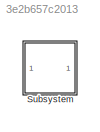
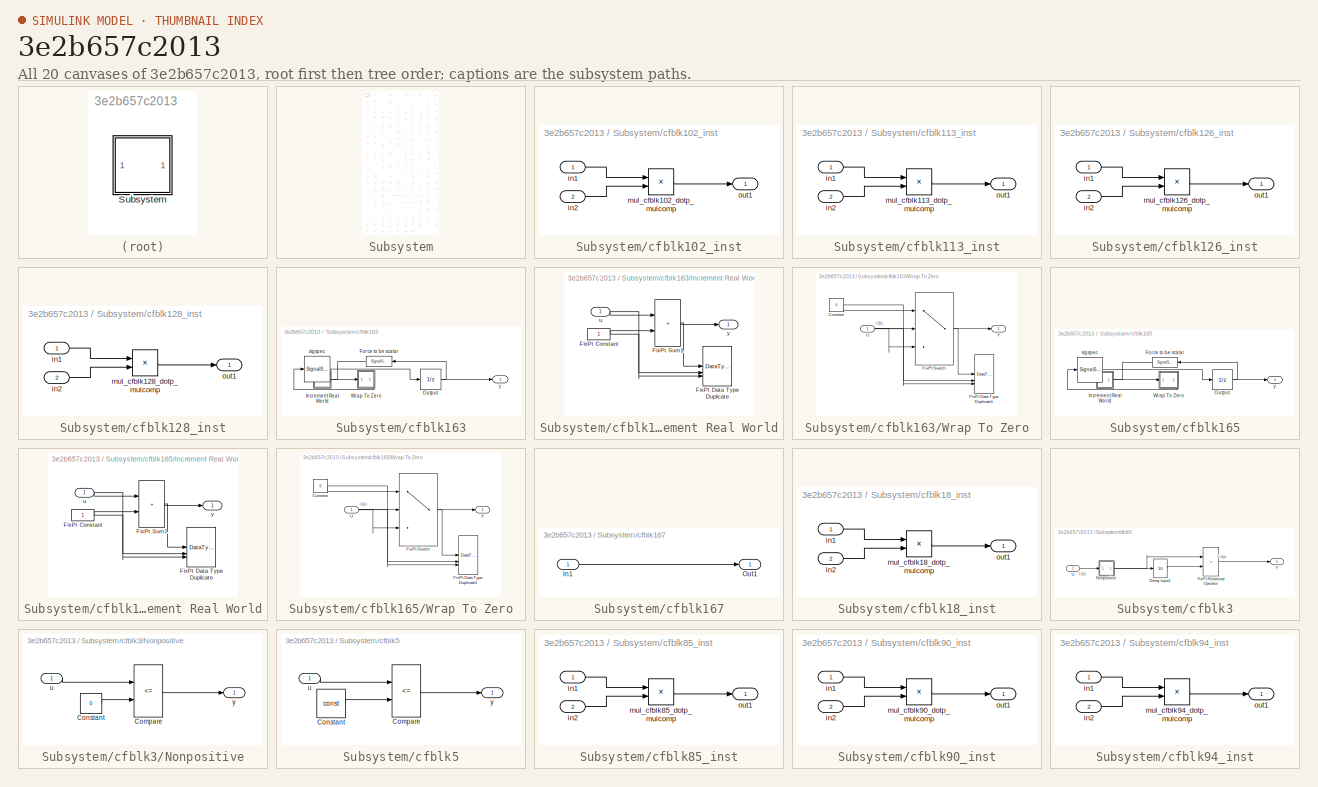
[diagram: thumbnail index - all 20 canvases of the model, root first then tree order]
MODEL slx_3e2b657c2013
KIND model
CONFIG AbsTol = auto
CONFIG EnableMultiTasking = off
CONFIG FixedStep = auto
CONFIG MaxStep = auto
CONFIG MinStep = auto
CONFIG RelTol = 1e-3
CONFIG SampleTimeConstraint = Unconstrained
CONFIG SolverName = VariableStepAuto
CONFIG StartTime = 0.0
CONFIG StopTime = 10.0
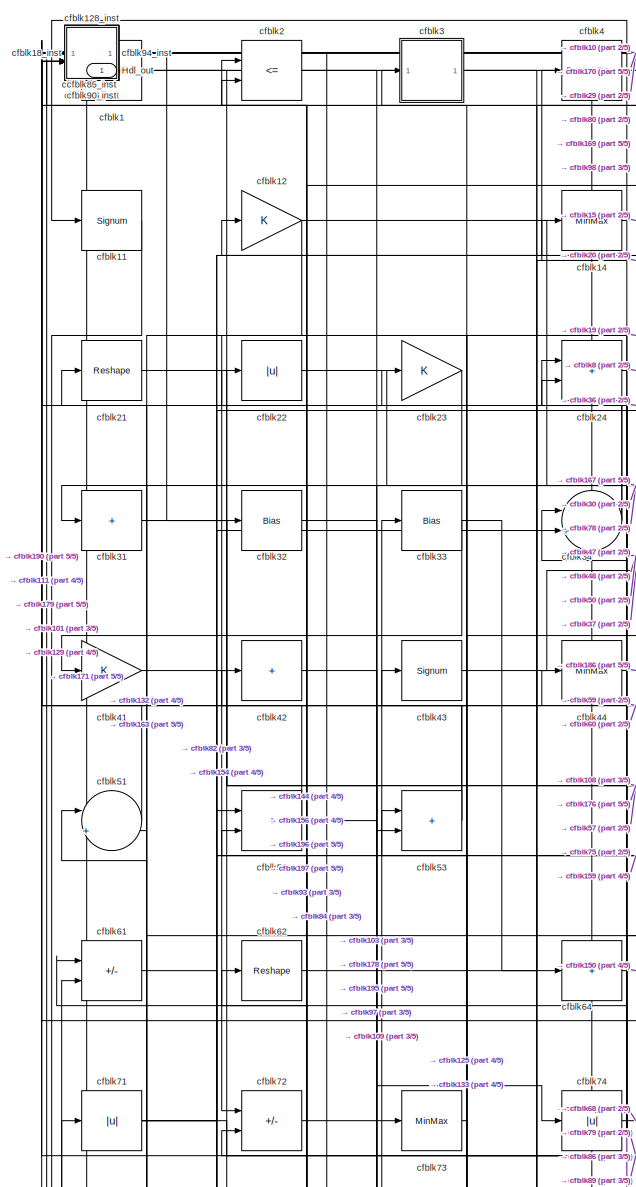
[diagram: Subsystem - part 1/5, top left region]
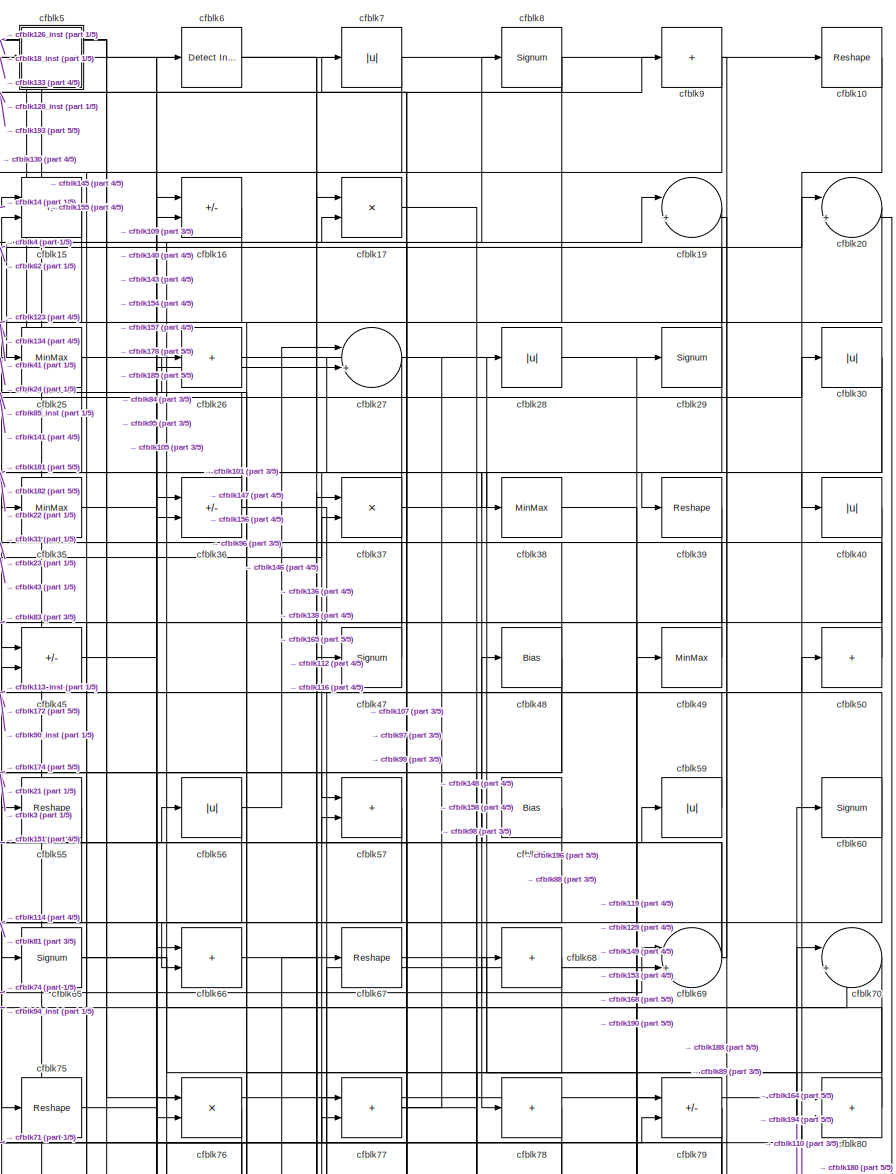
[diagram: Subsystem - part 2/5, top right region]
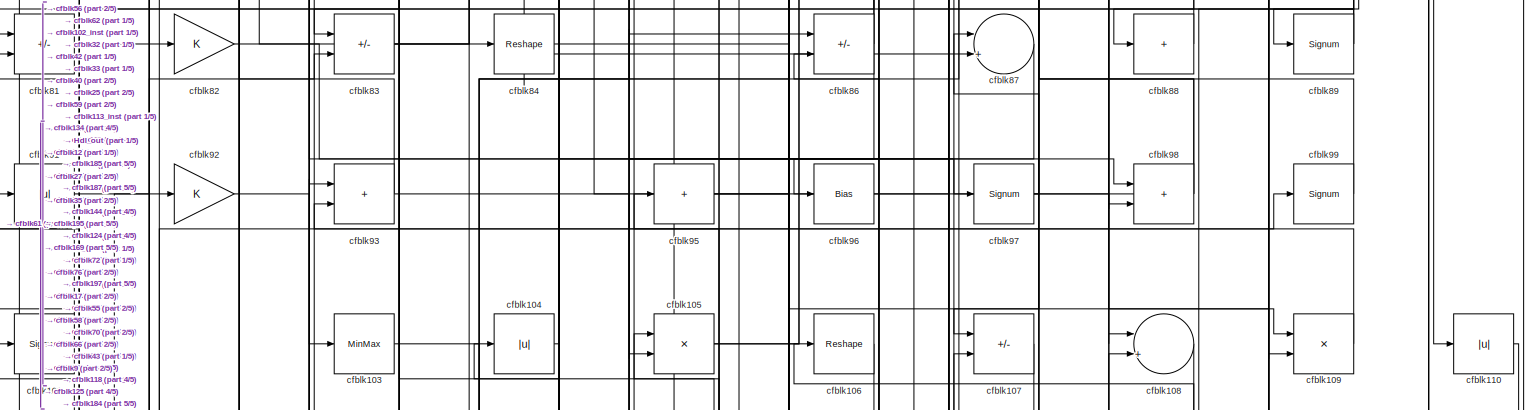
[diagram: Subsystem - part 3/5, full width, middle band]
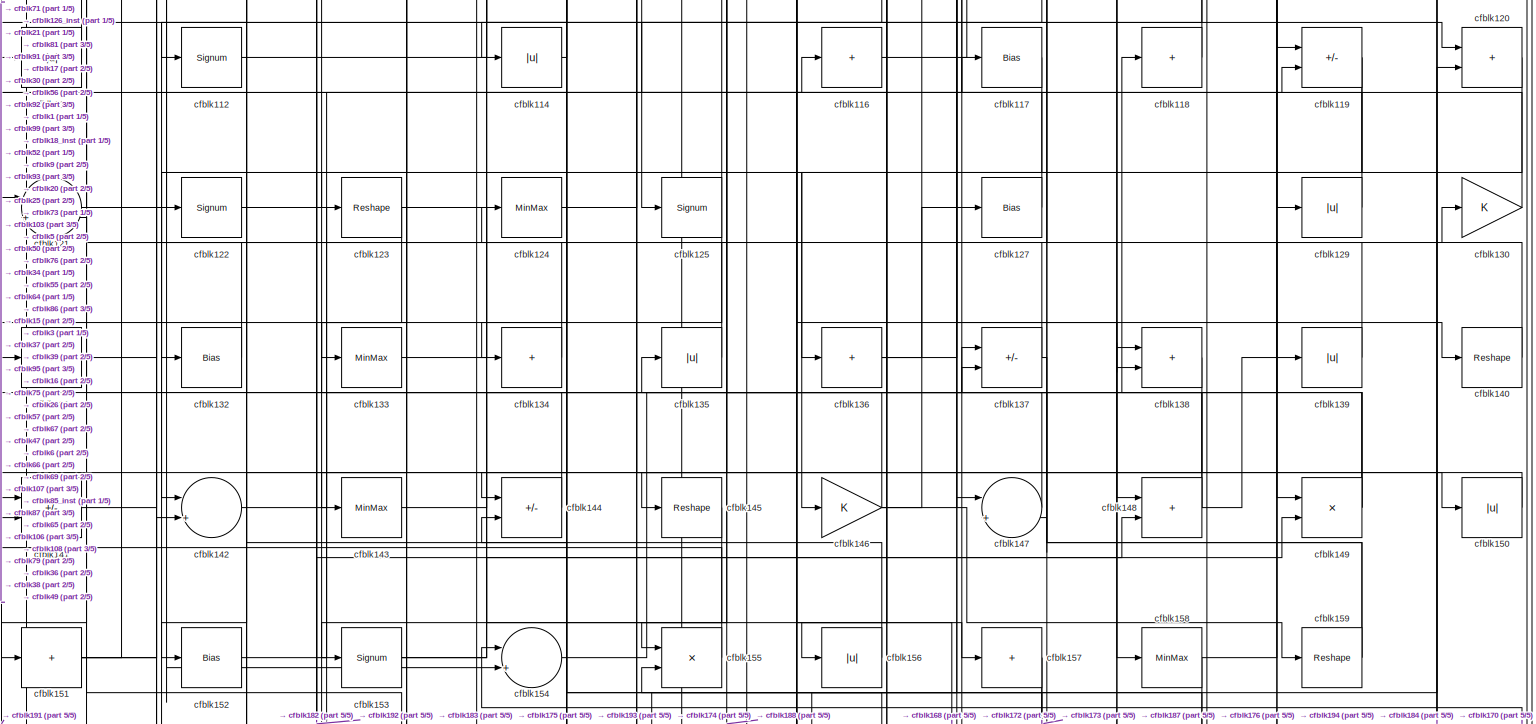
[diagram: Subsystem - part 4/5, full width, bottom band]
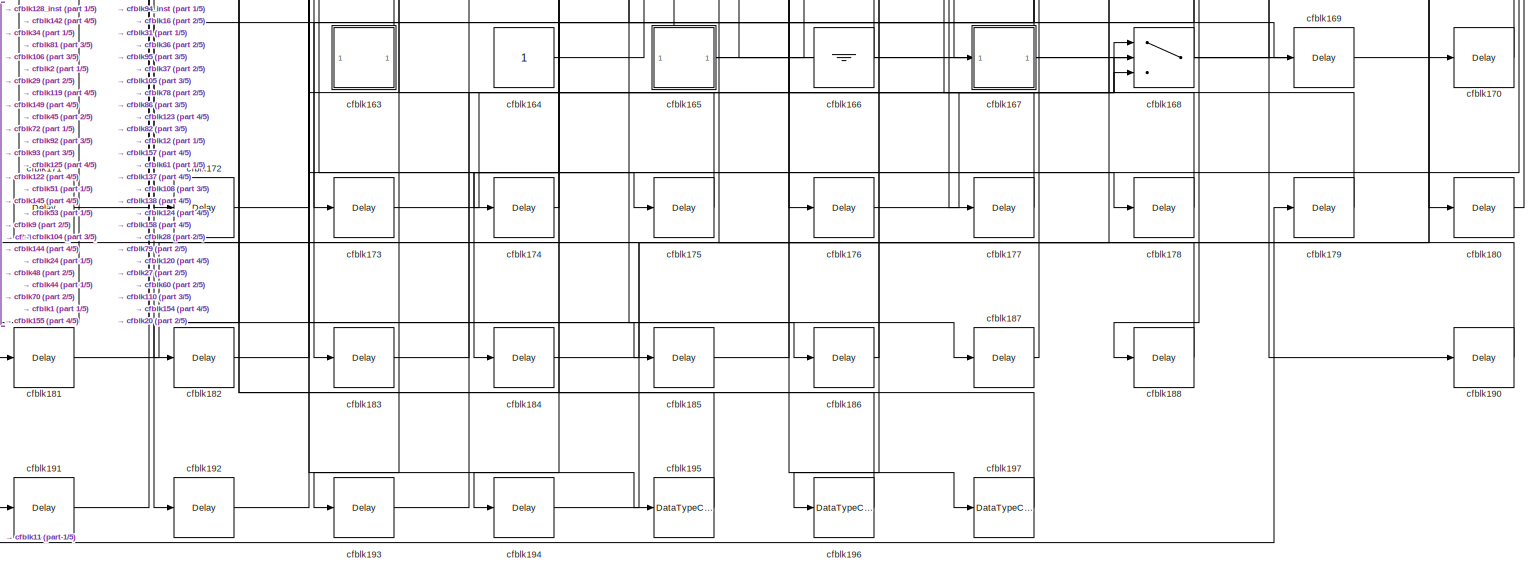
[diagram: Subsystem - part 5/5, full width, bottom band]
BLOCK [SubSystem] Subsystem
BLOCK [Outport] Subsystem/Hdl_out
  OutDataTypeStr = uint8
  SampleTime = 1
BLOCK [Reference] Subsystem/cfblk1  REF=hdlsllib/Logic and Bit
Operations/Bit Shift
  SourceBlock = hdlsllib/Logic and Bit\nOperations/Bit Shift
  SourceType = Bit Shift
BLOCK [Reshape] Subsystem/cfblk10
BLOCK [Signum] Subsystem/cfblk101
BLOCK [SubSystem] Subsystem/cfblk102_inst
BLOCK [Inport] Subsystem/cfblk102_inst/in1
  OutDataTypeStr = uint8
  SampleTime = 1
BLOCK [Inport] Subsystem/cfblk102_inst/in2
  OutDataTypeStr = uint8
  Port = 2
  SampleTime = 1
BLOCK [Product] Subsystem/cfblk102_inst/mul_cfblk102_dotp_mulcomp
  Inputs = **
  OutDataTypeStr = uint8
  SampleTime = 1
BLOCK [Outport] Subsystem/cfblk102_inst/out1
  OutDataTypeStr = uint8
  SampleTime = 1
BLOCK [MinMax] Subsystem/cfblk103
  OutDataTypeStr = uint8
BLOCK [Abs] Subsystem/cfblk104
  OutDataTypeStr = uint8
  SaturateOnIntegerOverflow = off
BLOCK [Product] Subsystem/cfblk105
  Inputs = */
  OutDataTypeStr = uint8
  RndMeth = Zero
  SaturateOnIntegerOverflow = on
BLOCK [Reshape] Subsystem/cfblk106
BLOCK [Sum] Subsystem/cfblk107
  IconShape = rectangular
  Inputs = +-
  OutDataTypeStr = uint8
BLOCK [Sum] Subsystem/cfblk108
  Inputs = |++
  OutDataTypeStr = uint8
BLOCK [Product] Subsystem/cfblk109
  Inputs = */
  OutDataTypeStr = uint8
  RndMeth = Zero
  SaturateOnIntegerOverflow = on
BLOCK [Signum] Subsystem/cfblk11
BLOCK [Abs] Subsystem/cfblk110
  OutDataTypeStr = uint8
  SaturateOnIntegerOverflow = off
BLOCK [Abs] Subsystem/cfblk111
  OutDataTypeStr = uint8
  SaturateOnIntegerOverflow = off
BLOCK [Signum] Subsystem/cfblk112
BLOCK [SubSystem] Subsystem/cfblk113_inst
BLOCK [Inport] Subsystem/cfblk113_inst/in1
  OutDataTypeStr = uint8
  SampleTime = 1
BLOCK [Inport] Subsystem/cfblk113_inst/in2
  OutDataTypeStr = uint8
  Port = 2
  SampleTime = 1
BLOCK [Product] Subsystem/cfblk113_inst/mul_cfblk113_dotp_mulcomp
  Inputs = **
  OutDataTypeStr = uint8
  SampleTime = 1
BLOCK [Outport] Subsystem/cfblk113_inst/out1
  OutDataTypeStr = uint8
  SampleTime = 1
BLOCK [Abs] Subsystem/cfblk114
  OutDataTypeStr = uint8
  SaturateOnIntegerOverflow = off
BLOCK [Sum] Subsystem/cfblk116
  IconShape = rectangular
  Inputs = +
  OutDataTypeStr = uint8
BLOCK [Bias] Subsystem/cfblk117
  Bias = 0.0
  SaturateOnIntegerOverflow = off
BLOCK [Sum] Subsystem/cfblk118
  IconShape = rectangular
  Inputs = +
  OutDataTypeStr = uint8
BLOCK [Sum] Subsystem/cfblk119
  IconShape = rectangular
  Inputs = +-
  OutDataTypeStr = uint8
BLOCK [Gain] Subsystem/cfblk12
  OutDataTypeStr = uint8
BLOCK [Sum] Subsystem/cfblk120
  IconShape = rectangular
  OutDataTypeStr = uint8
BLOCK [Sum] Subsystem/cfblk121
  Inputs = |++
  OutDataTypeStr = uint8
BLOCK [Signum] Subsystem/cfblk122
BLOCK [Reshape] Subsystem/cfblk123
BLOCK [MinMax] Subsystem/cfblk124
  OutDataTypeStr = uint8
BLOCK [Signum] Subsystem/cfblk125
BLOCK [SubSystem] Subsystem/cfblk126_inst
BLOCK [Inport] Subsystem/cfblk126_inst/in1
  OutDataTypeStr = uint8
  SampleTime = 1
BLOCK [Inport] Subsystem/cfblk126_inst/in2
  OutDataTypeStr = uint8
  Port = 2
  SampleTime = 1
BLOCK [Product] Subsystem/cfblk126_inst/mul_cfblk126_dotp_mulcomp
  Inputs = **
  OutDataTypeStr = uint8
  SampleTime = 1
BLOCK [Outport] Subsystem/cfblk126_inst/out1
  OutDataTypeStr = uint8
  SampleTime = 1
BLOCK [Bias] Subsystem/cfblk127
  Bias = 0.0
  SaturateOnIntegerOverflow = off
BLOCK [SubSystem] Subsystem/cfblk128_inst
BLOCK [Inport] Subsystem/cfblk128_inst/in1
  OutDataTypeStr = uint8
  SampleTime = 1
BLOCK [Inport] Subsystem/cfblk128_inst/in2
  OutDataTypeStr = uint8
  Port = 2
  SampleTime = 1
BLOCK [Product] Subsystem/cfblk128_inst/mul_cfblk128_dotp_mulcomp
  Inputs = **
  OutDataTypeStr = uint8
  SampleTime = 1
BLOCK [Outport] Subsystem/cfblk128_inst/out1
  OutDataTypeStr = uint8
  SampleTime = 1
BLOCK [Abs] Subsystem/cfblk129
  OutDataTypeStr = uint8
  SaturateOnIntegerOverflow = off
BLOCK [Gain] Subsystem/cfblk130
  OutDataTypeStr = uint8
BLOCK [Sum] Subsystem/cfblk131
  IconShape = rectangular
  Inputs = +
  OutDataTypeStr = uint8
BLOCK [Bias] Subsystem/cfblk132
  Bias = 0.0
  SaturateOnIntegerOverflow = off
BLOCK [MinMax] Subsystem/cfblk133
  OutDataTypeStr = uint8
BLOCK [Sum] Subsystem/cfblk134
  IconShape = rectangular
  Inputs = +
  OutDataTypeStr = uint8
BLOCK [Abs] Subsystem/cfblk135
  OutDataTypeStr = uint8
  SaturateOnIntegerOverflow = off
BLOCK [Sum] Subsystem/cfblk136
  IconShape = rectangular
  Inputs = +
  OutDataTypeStr = uint8
BLOCK [Sum] Subsystem/cfblk137
  IconShape = rectangular
  Inputs = +-
  OutDataTypeStr = uint8
BLOCK [Sum] Subsystem/cfblk138
  IconShape = rectangular
  OutDataTypeStr = uint8
BLOCK [Abs] Subsystem/cfblk139
  OutDataTypeStr = uint8
  SaturateOnIntegerOverflow = off
BLOCK [MinMax] Subsystem/cfblk14
  OutDataTypeStr = uint8
BLOCK [Reshape] Subsystem/cfblk140
BLOCK [Sum] Subsystem/cfblk141
  IconShape = rectangular
  Inputs = +-
  OutDataTypeStr = uint8
BLOCK [Sum] Subsystem/cfblk142
  Inputs = |++
  OutDataTypeStr = uint8
BLOCK [MinMax] Subsystem/cfblk143
  OutDataTypeStr = uint8
BLOCK [Sum] Subsystem/cfblk144
  IconShape = rectangular
  Inputs = +-
  OutDataTypeStr = uint8
BLOCK [Reshape] Subsystem/cfblk145
BLOCK [Gain] Subsystem/cfblk146
  OutDataTypeStr = uint8
BLOCK [Sum] Subsystem/cfblk147
  Inputs = |++
  OutDataTypeStr = uint8
BLOCK [Sum] Subsystem/cfblk148
  IconShape = rectangular
  OutDataTypeStr = uint8
BLOCK [Product] Subsystem/cfblk149
  Inputs = */
  OutDataTypeStr = uint8
  RndMeth = Zero
  SaturateOnIntegerOverflow = on
BLOCK [Sum] Subsystem/cfblk15
  IconShape = rectangular
  Inputs = +-
  OutDataTypeStr = uint8
BLOCK [Abs] Subsystem/cfblk150
  OutDataTypeStr = uint8
  SaturateOnIntegerOverflow = off
BLOCK [Sum] Subsystem/cfblk151
  IconShape = rectangular
  Inputs = +
  OutDataTypeStr = uint8
BLOCK [Bias] Subsystem/cfblk152
  Bias = 0.0
  SaturateOnIntegerOverflow = off
BLOCK [Signum] Subsystem/cfblk153
BLOCK [Sum] Subsystem/cfblk154
  Inputs = |++
  OutDataTypeStr = uint8
BLOCK [Product] Subsystem/cfblk155
  Inputs = */
  OutDataTypeStr = uint8
  RndMeth = Zero
  SaturateOnIntegerOverflow = on
BLOCK [Abs] Subsystem/cfblk156
  OutDataTypeStr = uint8
  SaturateOnIntegerOverflow = off
BLOCK [Sum] Subsystem/cfblk157
  IconShape = rectangular
  Inputs = +
  OutDataTypeStr = uint8
BLOCK [MinMax] Subsystem/cfblk158
  OutDataTypeStr = uint8
BLOCK [Reshape] Subsystem/cfblk159
BLOCK [Sum] Subsystem/cfblk16
  IconShape = rectangular
  Inputs = +-
  OutDataTypeStr = uint8
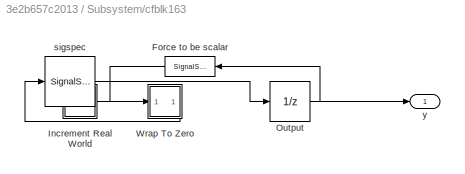
BLOCK [SubSystem] Subsystem/cfblk163
BLOCK [SignalSpecification] Subsystem/cfblk163/Force to be scalar
  Dimensions = 1
  DisableCoverage = on
BLOCK [SubSystem] Subsystem/cfblk163/Increment Real World
BLOCK [Constant] Subsystem/cfblk163/Increment Real World/FixPt Constant
  DisableCoverage = on
  OutDataTypeStr = Inherit: Inherit via back propagation
  SampleTime = -1
BLOCK [DataTypeDuplicate] Subsystem/cfblk163/Increment Real World/FixPt Data Type Duplicate
  DisableCoverage = on
  NumInputPorts = 3
BLOCK [Sum] Subsystem/cfblk163/Increment Real World/FixPt Sum1
  IconShape = rectangular
  InputSameDT = on
  LockScale = on
  OutDataTypeStr = Inherit: Inherit via back propagation
BLOCK [Inport] Subsystem/cfblk163/Increment Real World/u
  OutDataTypeStr = uint16
  SampleTime = 1
BLOCK [Outport] Subsystem/cfblk163/Increment Real World/y
  SampleTime = 1
BLOCK [UnitDelay] Subsystem/cfblk163/Output
  HasFrameUpgradeWarning = on
  InitialCondition = 0.0
  SampleTime = tsamp
BLOCK [SubSystem] Subsystem/cfblk163/Wrap To Zero
BLOCK [Constant] Subsystem/cfblk163/Wrap To Zero/Constant
  DisableCoverage = on
  OutDataTypeStr = Inherit: Inherit via back propagation
  SampleTime = -1
  Value = 0
BLOCK [DataTypeDuplicate] Subsystem/cfblk163/Wrap To Zero/FixPt Data Type Duplicate1
  DisableCoverage = on
  NumInputPorts = 3
BLOCK [Switch] Subsystem/cfblk163/Wrap To Zero/FixPt Switch
  Criteria = u2 > Threshold
  InputSameDT = off
  OutDataTypeStr = Inherit: Inherit via back propagation
  SaturateOnIntegerOverflow = off
  Threshold = Threshold
  ZeroCross = off
BLOCK [Inport] Subsystem/cfblk163/Wrap To Zero/U
  OutDataTypeStr = uint16
  SampleTime = 1
BLOCK [Outport] Subsystem/cfblk163/Wrap To Zero/Y
  SampleTime = 1
BLOCK [SignalSpecification] Subsystem/cfblk163/sigspec
  Dimensions = 1
  OutDataTypeStr = uint16
BLOCK [Outport] Subsystem/cfblk163/y
  SampleTime = 1
BLOCK [Constant] Subsystem/cfblk164
  OutDataTypeStr = uint8
  SampleTime = -1
BLOCK [SubSystem] Subsystem/cfblk165
BLOCK [SignalSpecification] Subsystem/cfblk165/Force to be scalar
  Dimensions = 1
  DisableCoverage = on
BLOCK [SubSystem] Subsystem/cfblk165/Increment Real World
BLOCK [Constant] Subsystem/cfblk165/Increment Real World/FixPt Constant
  DisableCoverage = on
  OutDataTypeStr = Inherit: Inherit via back propagation
  SampleTime = -1
BLOCK [DataTypeDuplicate] Subsystem/cfblk165/Increment Real World/FixPt Data Type Duplicate
  DisableCoverage = on
  NumInputPorts = 3
BLOCK [Sum] Subsystem/cfblk165/Increment Real World/FixPt Sum1
  IconShape = rectangular
  InputSameDT = on
  LockScale = on
  OutDataTypeStr = Inherit: Inherit via back propagation
BLOCK [Inport] Subsystem/cfblk165/Increment Real World/u
  OutDataTypeStr = uint8
  SampleTime = 1
BLOCK [Outport] Subsystem/cfblk165/Increment Real World/y
  SampleTime = 1
BLOCK [UnitDelay] Subsystem/cfblk165/Output
  HasFrameUpgradeWarning = on
  InitialCondition = 0.0
  SampleTime = tsamp
BLOCK [SubSystem] Subsystem/cfblk165/Wrap To Zero
BLOCK [Constant] Subsystem/cfblk165/Wrap To Zero/Constant
  DisableCoverage = on
  OutDataTypeStr = Inherit: Inherit via back propagation
  SampleTime = -1
  Value = 0
BLOCK [DataTypeDuplicate] Subsystem/cfblk165/Wrap To Zero/FixPt Data Type Duplicate1
  DisableCoverage = on
  NumInputPorts = 3
BLOCK [Switch] Subsystem/cfblk165/Wrap To Zero/FixPt Switch
  Criteria = u2 > Threshold
  InputSameDT = off
  OutDataTypeStr = Inherit: Inherit via back propagation
  SaturateOnIntegerOverflow = off
  Threshold = Threshold
  ZeroCross = off
BLOCK [Inport] Subsystem/cfblk165/Wrap To Zero/U
  OutDataTypeStr = uint8
  SampleTime = 1
BLOCK [Outport] Subsystem/cfblk165/Wrap To Zero/Y
  SampleTime = 1
BLOCK [SignalSpecification] Subsystem/cfblk165/sigspec
  Dimensions = 1
  OutDataTypeStr = uint8
BLOCK [Outport] Subsystem/cfblk165/y
  SampleTime = 1
BLOCK [Ground] Subsystem/cfblk166
BLOCK [SubSystem] Subsystem/cfblk167
BLOCK [Inport] Subsystem/cfblk167/In1
  OutDataTypeStr = uint8
  PortDimensions = 1
  SampleTime = 1
BLOCK [Outport] Subsystem/cfblk167/Out1
  SampleTime = 1
BLOCK [Switch] Subsystem/cfblk168
  InputSameDT = off
  OutDataTypeStr = uint8
  SaturateOnIntegerOverflow = off
BLOCK [Delay] Subsystem/cfblk169
  InputPortMap = u0
  SampleTime = 1
BLOCK [Product] Subsystem/cfblk17
  Inputs = */
  OutDataTypeStr = uint8
  RndMeth = Zero
  SaturateOnIntegerOverflow = on
BLOCK [Delay] Subsystem/cfblk170
  InputPortMap = u0
  SampleTime = 1
BLOCK [Delay] Subsystem/cfblk171
  InputPortMap = u0
  SampleTime = 1
BLOCK [Delay] Subsystem/cfblk172
  InputPortMap = u0
  SampleTime = 1
BLOCK [Delay] Subsystem/cfblk173
  InputPortMap = u0
  SampleTime = 1
BLOCK [Delay] Subsystem/cfblk174
  InputPortMap = u0
  SampleTime = 1
BLOCK [Delay] Subsystem/cfblk175
  InputPortMap = u0
  SampleTime = 1
BLOCK [Delay] Subsystem/cfblk176
  InputPortMap = u0
  SampleTime = 1
BLOCK [Delay] Subsystem/cfblk177
  InputPortMap = u0
  SampleTime = 1
BLOCK [Delay] Subsystem/cfblk178
  InputPortMap = u0
  SampleTime = 1
BLOCK [Delay] Subsystem/cfblk179
  InputPortMap = u0
  SampleTime = 1
BLOCK [Delay] Subsystem/cfblk180
  InputPortMap = u0
  SampleTime = 1
BLOCK [Delay] Subsystem/cfblk181
  InputPortMap = u0
  SampleTime = 1
BLOCK [Delay] Subsystem/cfblk182
  InputPortMap = u0
  SampleTime = 1
BLOCK [Delay] Subsystem/cfblk183
  InputPortMap = u0
  SampleTime = 1
BLOCK [Delay] Subsystem/cfblk184
  InputPortMap = u0
  SampleTime = 1
BLOCK [Delay] Subsystem/cfblk185
  InputPortMap = u0
  SampleTime = 1
BLOCK [Delay] Subsystem/cfblk186
  InputPortMap = u0
  SampleTime = 1
BLOCK [Delay] Subsystem/cfblk187
  InputPortMap = u0
  SampleTime = 1
BLOCK [Delay] Subsystem/cfblk188
  InputPortMap = u0
  SampleTime = 1
BLOCK [SubSystem] Subsystem/cfblk18_inst
BLOCK [Inport] Subsystem/cfblk18_inst/in1
  OutDataTypeStr = uint8
  SampleTime = 1
BLOCK [Inport] Subsystem/cfblk18_inst/in2
  OutDataTypeStr = uint8
  Port = 2
  SampleTime = 1
BLOCK [Product] Subsystem/cfblk18_inst/mul_cfblk18_dotp_mulcomp
  Inputs = **
  OutDataTypeStr = uint8
  SampleTime = 1
BLOCK [Outport] Subsystem/cfblk18_inst/out1
  OutDataTypeStr = uint8
  SampleTime = 1
BLOCK [Sum] Subsystem/cfblk19
  Inputs = |++
  OutDataTypeStr = uint8
BLOCK [Delay] Subsystem/cfblk190
  InputPortMap = u0
  SampleTime = 1
BLOCK [Delay] Subsystem/cfblk191
  InputPortMap = u0
  SampleTime = 1
BLOCK [Delay] Subsystem/cfblk192
  InputPortMap = u0
  SampleTime = 1
BLOCK [Delay] Subsystem/cfblk193
  InputPortMap = u0
  SampleTime = 1
BLOCK [Delay] Subsystem/cfblk194
  InputPortMap = u0
  SampleTime = 1
BLOCK [DataTypeConversion] Subsystem/cfblk195
  OutDataTypeStr = uint8
  RndMeth = Floor
  SaturateOnIntegerOverflow = off
BLOCK [DataTypeConversion] Subsystem/cfblk196
  OutDataTypeStr = uint8
  RndMeth = Floor
  SaturateOnIntegerOverflow = off
BLOCK [DataTypeConversion] Subsystem/cfblk197
  OutDataTypeStr = uint8
  RndMeth = Floor
  SaturateOnIntegerOverflow = off
BLOCK [RelationalOperator] Subsystem/cfblk2
  InputSameDT = off
  Operator = <=
  OutDataTypeStr = boolean
BLOCK [Sum] Subsystem/cfblk20
  Inputs = |++
  OutDataTypeStr = uint8
BLOCK [Reshape] Subsystem/cfblk21
BLOCK [Abs] Subsystem/cfblk22
  OutDataTypeStr = uint8
  SaturateOnIntegerOverflow = off
BLOCK [Gain] Subsystem/cfblk23
  OutDataTypeStr = uint8
BLOCK [Sum] Subsystem/cfblk24
  IconShape = rectangular
  OutDataTypeStr = uint8
BLOCK [MinMax] Subsystem/cfblk25
  OutDataTypeStr = uint8
BLOCK [Sum] Subsystem/cfblk26
  IconShape = rectangular
  Inputs = +
  OutDataTypeStr = uint8
BLOCK [Sum] Subsystem/cfblk27
  Inputs = |++
  OutDataTypeStr = uint8
BLOCK [Abs] Subsystem/cfblk28
  OutDataTypeStr = uint8
  SaturateOnIntegerOverflow = off
BLOCK [Signum] Subsystem/cfblk29
BLOCK [SubSystem] Subsystem/cfblk3
BLOCK [UnitDelay] Subsystem/cfblk3/Delay Input1
  Description = Store in Global RAM
  DisableCoverage = on
  HasFrameUpgradeWarning = on
  InitialCondition = vinit
  SampleTime = -1
BLOCK [RelationalOperator] Subsystem/cfblk3/FixPt Relational Operator
  InputSameDT = off
  Operator = >
  OutDataTypeStr = fixdt(0, 8)
  ZeroCross = off
BLOCK [SubSystem] Subsystem/cfblk3/Nonpositive
BLOCK [RelationalOperator] Subsystem/cfblk3/Nonpositive/Compare
  Operator = <=
  OutDataTypeStr = boolean
  ZeroCross = off
BLOCK [Constant] Subsystem/cfblk3/Nonpositive/Constant
  DisableCoverage = on
  OutDataTypeStr = Inherit: Inherit via back propagation
  PreserveConstantTs = on
  SampleTime = -1
  Value = 0
BLOCK [Inport] Subsystem/cfblk3/Nonpositive/u
  OutDataTypeStr = uint8
  SampleTime = 1
BLOCK [Outport] Subsystem/cfblk3/Nonpositive/y
  SampleTime = 1
BLOCK [Inport] Subsystem/cfblk3/U
  OutDataTypeStr = uint8
  SampleTime = 1
BLOCK [Outport] Subsystem/cfblk3/Y
  SampleTime = 1
BLOCK [Abs] Subsystem/cfblk30
  OutDataTypeStr = uint8
  SaturateOnIntegerOverflow = off
BLOCK [Sum] Subsystem/cfblk31
  IconShape = rectangular
  Inputs = +
  OutDataTypeStr = uint8
BLOCK [Bias] Subsystem/cfblk32
  Bias = 0.0
  SaturateOnIntegerOverflow = off
BLOCK [Bias] Subsystem/cfblk33
  Bias = 0.0
  SaturateOnIntegerOverflow = off
BLOCK [Sum] Subsystem/cfblk34
  Inputs = |++
  OutDataTypeStr = uint8
BLOCK [MinMax] Subsystem/cfblk35
  OutDataTypeStr = uint8
BLOCK [Sum] Subsystem/cfblk36
  IconShape = rectangular
  Inputs = +-
  OutDataTypeStr = uint8
BLOCK [Product] Subsystem/cfblk37
  Inputs = */
  OutDataTypeStr = uint8
  RndMeth = Zero
  SaturateOnIntegerOverflow = on
BLOCK [MinMax] Subsystem/cfblk38
  OutDataTypeStr = uint8
BLOCK [Reshape] Subsystem/cfblk39
BLOCK [Reference] Subsystem/cfblk4  REF=simulink/Logic and Bit
Operations/Detect
Decrease
  LibrarySourceBlock = hdlsllib/Logic and Bit\nOperations/Detect\nDecrease
  SourceBlock = simulink/Logic and Bit\nOperations/Detect\nDecrease
  SourceType = Detect Decrease
BLOCK [Abs] Subsystem/cfblk40
  OutDataTypeStr = uint8
  SaturateOnIntegerOverflow = off
BLOCK [Gain] Subsystem/cfblk41
  OutDataTypeStr = uint8
BLOCK [Sum] Subsystem/cfblk42
  IconShape = rectangular
  Inputs = +
  OutDataTypeStr = uint8
BLOCK [Signum] Subsystem/cfblk43
BLOCK [MinMax] Subsystem/cfblk44
  OutDataTypeStr = uint8
BLOCK [Sum] Subsystem/cfblk45
  IconShape = rectangular
  Inputs = +-
  OutDataTypeStr = uint8
BLOCK [Signum] Subsystem/cfblk47
BLOCK [Bias] Subsystem/cfblk48
  Bias = 0.0
  SaturateOnIntegerOverflow = off
BLOCK [MinMax] Subsystem/cfblk49
  OutDataTypeStr = uint8
BLOCK [SubSystem] Subsystem/cfblk5
BLOCK [RelationalOperator] Subsystem/cfblk5/Compare
  Operator = <=
  OutDataTypeStr = fixdt(0, 8)
BLOCK [Constant] Subsystem/cfblk5/Constant
  DisableCoverage = on
  OutDataTypeStr = Inherit: Inherit via back propagation
  SampleTime = -1
  Value = const
BLOCK [Inport] Subsystem/cfblk5/u
  OutDataTypeStr = uint8
  SampleTime = 1
BLOCK [Outport] Subsystem/cfblk5/y
  SampleTime = 1
BLOCK [Sum] Subsystem/cfblk50
  IconShape = rectangular
  Inputs = +
  OutDataTypeStr = uint8
BLOCK [Sum] Subsystem/cfblk51
  Inputs = |++
  OutDataTypeStr = uint8
BLOCK [Sum] Subsystem/cfblk52
  IconShape = rectangular
  OutDataTypeStr = uint8
BLOCK [Sum] Subsystem/cfblk53
  IconShape = rectangular
  OutDataTypeStr = uint8
BLOCK [Reshape] Subsystem/cfblk55
BLOCK [Abs] Subsystem/cfblk56
  OutDataTypeStr = uint8
  SaturateOnIntegerOverflow = off
BLOCK [Sum] Subsystem/cfblk57
  IconShape = rectangular
  OutDataTypeStr = uint8
BLOCK [Bias] Subsystem/cfblk58
  Bias = 0.0
  SaturateOnIntegerOverflow = off
BLOCK [Abs] Subsystem/cfblk59
  OutDataTypeStr = uint8
  SaturateOnIntegerOverflow = off
BLOCK [Reference] Subsystem/cfblk6  REF=simulink/Logic and Bit
Operations/Detect
Increase
  LibrarySourceBlock = hdlsllib/Logic and Bit\nOperations/Detect\nIncrease
  SourceBlock = simulink/Logic and Bit\nOperations/Detect\nIncrease
  SourceType = Detect Increase
BLOCK [Signum] Subsystem/cfblk60
BLOCK [Sum] Subsystem/cfblk61
  IconShape = rectangular
  Inputs = +-
  OutDataTypeStr = uint8
BLOCK [Reshape] Subsystem/cfblk62
BLOCK [Sum] Subsystem/cfblk64
  IconShape = rectangular
  Inputs = +
  OutDataTypeStr = uint8
BLOCK [Signum] Subsystem/cfblk65
BLOCK [Sum] Subsystem/cfblk66
  IconShape = rectangular
  OutDataTypeStr = uint8
BLOCK [Reshape] Subsystem/cfblk67
BLOCK [Sum] Subsystem/cfblk68
  IconShape = rectangular
  Inputs = +
  OutDataTypeStr = uint8
BLOCK [Sum] Subsystem/cfblk69
  Inputs = |++
  OutDataTypeStr = uint8
BLOCK [Abs] Subsystem/cfblk7
  OutDataTypeStr = uint8
  SaturateOnIntegerOverflow = off
BLOCK [Sum] Subsystem/cfblk70
  Inputs = |++
  OutDataTypeStr = uint8
BLOCK [Abs] Subsystem/cfblk71
  OutDataTypeStr = uint8
  SaturateOnIntegerOverflow = off
BLOCK [Sum] Subsystem/cfblk72
  IconShape = rectangular
  Inputs = +-
  OutDataTypeStr = uint8
BLOCK [MinMax] Subsystem/cfblk73
  OutDataTypeStr = uint8
BLOCK [Abs] Subsystem/cfblk74
  OutDataTypeStr = uint8
  SaturateOnIntegerOverflow = off
BLOCK [Reshape] Subsystem/cfblk75
BLOCK [Product] Subsystem/cfblk76
  Inputs = */
  OutDataTypeStr = uint8
  RndMeth = Zero
  SaturateOnIntegerOverflow = on
BLOCK [Sum] Subsystem/cfblk77
  IconShape = rectangular
  OutDataTypeStr = uint8
BLOCK [Sum] Subsystem/cfblk78
  IconShape = rectangular
  Inputs = +
  OutDataTypeStr = uint8
BLOCK [Sum] Subsystem/cfblk79
  IconShape = rectangular
  Inputs = +-
  OutDataTypeStr = uint8
BLOCK [Signum] Subsystem/cfblk8
BLOCK [Sum] Subsystem/cfblk80
  IconShape = rectangular
  OutDataTypeStr = uint8
BLOCK [Sum] Subsystem/cfblk81
  IconShape = rectangular
  Inputs = +-
  OutDataTypeStr = uint8
BLOCK [Gain] Subsystem/cfblk82
  OutDataTypeStr = uint8
BLOCK [Sum] Subsystem/cfblk83
  IconShape = rectangular
  Inputs = +-
  OutDataTypeStr = uint8
BLOCK [Reshape] Subsystem/cfblk84
BLOCK [SubSystem] Subsystem/cfblk85_inst
BLOCK [Inport] Subsystem/cfblk85_inst/in1
  OutDataTypeStr = uint8
  SampleTime = 1
BLOCK [Inport] Subsystem/cfblk85_inst/in2
  OutDataTypeStr = uint8
  Port = 2
  SampleTime = 1
BLOCK [Product] Subsystem/cfblk85_inst/mul_cfblk85_dotp_mulcomp
  Inputs = **
  OutDataTypeStr = uint8
  SampleTime = 1
BLOCK [Outport] Subsystem/cfblk85_inst/out1
  OutDataTypeStr = uint8
  SampleTime = 1
BLOCK [Sum] Subsystem/cfblk86
  IconShape = rectangular
  Inputs = +-
  OutDataTypeStr = uint8
BLOCK [Sum] Subsystem/cfblk87
  Inputs = |++
  OutDataTypeStr = uint8
BLOCK [Sum] Subsystem/cfblk88
  IconShape = rectangular
  Inputs = +
  OutDataTypeStr = uint8
BLOCK [Signum] Subsystem/cfblk89
BLOCK [Sum] Subsystem/cfblk9
  IconShape = rectangular
  Inputs = +
  OutDataTypeStr = uint8
BLOCK [SubSystem] Subsystem/cfblk90_inst
BLOCK [Inport] Subsystem/cfblk90_inst/in1
  OutDataTypeStr = uint8
  SampleTime = 1
BLOCK [Inport] Subsystem/cfblk90_inst/in2
  OutDataTypeStr = uint8
  Port = 2
  SampleTime = 1
BLOCK [Product] Subsystem/cfblk90_inst/mul_cfblk90_dotp_mulcomp
  Inputs = **
  OutDataTypeStr = uint8
  SampleTime = 1
BLOCK [Outport] Subsystem/cfblk90_inst/out1
  OutDataTypeStr = uint8
  SampleTime = 1
BLOCK [Abs] Subsystem/cfblk91
  OutDataTypeStr = uint8
  SaturateOnIntegerOverflow = off
BLOCK [Gain] Subsystem/cfblk92
  OutDataTypeStr = uint8
BLOCK [Sum] Subsystem/cfblk93
  IconShape = rectangular
  OutDataTypeStr = uint8
BLOCK [SubSystem] Subsystem/cfblk94_inst
BLOCK [Inport] Subsystem/cfblk94_inst/in1
  OutDataTypeStr = uint8
  SampleTime = 1
BLOCK [Inport] Subsystem/cfblk94_inst/in2
  OutDataTypeStr = uint8
  Port = 2
  SampleTime = 1
BLOCK [Product] Subsystem/cfblk94_inst/mul_cfblk94_dotp_mulcomp
  Inputs = **
  OutDataTypeStr = uint8
  SampleTime = 1
BLOCK [Outport] Subsystem/cfblk94_inst/out1
  OutDataTypeStr = uint8
  SampleTime = 1
BLOCK [Sum] Subsystem/cfblk95
  IconShape = rectangular
  Inputs = +
  OutDataTypeStr = uint8
BLOCK [Bias] Subsystem/cfblk96
  Bias = 0.0
  SaturateOnIntegerOverflow = off
BLOCK [Signum] Subsystem/cfblk97
BLOCK [Sum] Subsystem/cfblk98
  IconShape = rectangular
  OutDataTypeStr = uint8
BLOCK [Signum] Subsystem/cfblk99
ANNOTATION Subsystem/cfblk163/Wrap To Zero: U(k)
ANNOTATION Subsystem/cfblk165/Wrap To Zero: U(k)
ANNOTATION Subsystem/cfblk3: Edge
ANNOTATION Subsystem/cfblk3: U(k)
LINE Subsystem/cfblk101:1 -> Subsystem/cfblk61:2
LINE Subsystem/cfblk102_inst/in1:1 -> Subsystem/cfblk102_inst/mul_cfblk102_dotp_mulcomp:1
LINE Subsystem/cfblk102_inst/in2:1 -> Subsystem/cfblk102_inst/mul_cfblk102_dotp_mulcomp:2
LINE Subsystem/cfblk102_inst/mul_cfblk102_dotp_mulcomp:1 -> Subsystem/cfblk102_inst/out1:1
LINE Subsystem/cfblk102_inst:1 -> Subsystem/cfblk84:1
LINE Subsystem/cfblk103:1 -> Subsystem/cfblk120:1
LINE Subsystem/cfblk104:1 -> Subsystem/cfblk11:1
NET Subsystem/cfblk105:1 -> Subsystem/cfblk19:1, Subsystem/cfblk80:2
LINE Subsystem/cfblk106:1 -> Subsystem/cfblk192:1
LINE Subsystem/cfblk107:1 -> Subsystem/cfblk121:1
LINE Subsystem/cfblk108:1 -> Subsystem/cfblk125:1
LINE Subsystem/cfblk109:1 -> Subsystem/cfblk33:1
LINE Subsystem/cfblk10:1 -> Subsystem/cfblk110:1
LINE Subsystem/cfblk110:1 -> Subsystem/cfblk184:1
LINE Subsystem/cfblk111:1 -> Subsystem/cfblk126_inst:1
LINE Subsystem/cfblk112:1 -> Subsystem/cfblk50:1
LINE Subsystem/cfblk113_inst/in1:1 -> Subsystem/cfblk113_inst/mul_cfblk113_dotp_mulcomp:1
LINE Subsystem/cfblk113_inst/in2:1 -> Subsystem/cfblk113_inst/mul_cfblk113_dotp_mulcomp:2
LINE Subsystem/cfblk113_inst/mul_cfblk113_dotp_mulcomp:1 -> Subsystem/cfblk113_inst/out1:1
NET Subsystem/cfblk113_inst:1 -> Subsystem/cfblk128_inst:1, Subsystem/cfblk87:2
LINE Subsystem/cfblk114:1 -> Subsystem/cfblk34:1
LINE Subsystem/cfblk116:1 -> Subsystem/cfblk69:2
LINE Subsystem/cfblk117:1 -> Subsystem/cfblk146:1
LINE Subsystem/cfblk118:1 -> Subsystem/cfblk106:1
NET Subsystem/cfblk119:1 -> Subsystem/cfblk132:1, Subsystem/cfblk142:1
LINE Subsystem/cfblk11:1 -> Subsystem/cfblk179:1
LINE Subsystem/cfblk120:1 -> Subsystem/cfblk136:1
LINE Subsystem/cfblk121:1 -> Subsystem/cfblk99:1
LINE Subsystem/cfblk122:1 -> Subsystem/cfblk175:1
NET Subsystem/cfblk123:1 -> Subsystem/cfblk168:1, Subsystem/cfblk191:1
LINE Subsystem/cfblk124:1 -> Subsystem/cfblk86:1
NET Subsystem/cfblk125:1 -> Subsystem/cfblk183:1, Subsystem/cfblk3:1
LINE Subsystem/cfblk126_inst/in1:1 -> Subsystem/cfblk126_inst/mul_cfblk126_dotp_mulcomp:1
LINE Subsystem/cfblk126_inst/in2:1 -> Subsystem/cfblk126_inst/mul_cfblk126_dotp_mulcomp:2
LINE Subsystem/cfblk126_inst/mul_cfblk126_dotp_mulcomp:1 -> Subsystem/cfblk126_inst/out1:1
LINE Subsystem/cfblk126_inst:1 -> Subsystem/cfblk80:1
LINE Subsystem/cfblk127:1 -> Subsystem/cfblk107:2
LINE Subsystem/cfblk128_inst/in1:1 -> Subsystem/cfblk128_inst/mul_cfblk128_dotp_mulcomp:1
LINE Subsystem/cfblk128_inst/in2:1 -> Subsystem/cfblk128_inst/mul_cfblk128_dotp_mulcomp:2
LINE Subsystem/cfblk128_inst/mul_cfblk128_dotp_mulcomp:1 -> Subsystem/cfblk128_inst/out1:1
LINE Subsystem/cfblk128_inst:1 -> Subsystem/cfblk171:1
LINE Subsystem/cfblk129:1 -> Subsystem/cfblk71:1
NET Subsystem/cfblk12:1 -> Subsystem/cfblk167:1, Subsystem/cfblk72:1
LINE Subsystem/cfblk130:1 -> Subsystem/cfblk15:2
LINE Subsystem/cfblk131:1 -> Subsystem/cfblk116:1
LINE Subsystem/cfblk132:1 -> Subsystem/cfblk21:1
LINE Subsystem/cfblk133:1 -> Subsystem/cfblk5:1
LINE Subsystem/cfblk134:1 -> Subsystem/cfblk81:2
LINE Subsystem/cfblk135:1 -> Subsystem/cfblk91:1
NET Subsystem/cfblk136:1 -> Subsystem/cfblk127:1, Subsystem/cfblk47:1
NET Subsystem/cfblk137:1 -> Subsystem/cfblk122:1, Subsystem/cfblk147:2
LINE Subsystem/cfblk138:1 -> Subsystem/cfblk152:1
LINE Subsystem/cfblk139:1 -> Subsystem/cfblk87:1
LINE Subsystem/cfblk140:1 -> Subsystem/cfblk111:1
LINE Subsystem/cfblk141:1 -> Subsystem/cfblk30:1
LINE Subsystem/cfblk142:1 -> Subsystem/cfblk117:1
LINE Subsystem/cfblk143:1 -> Subsystem/cfblk76:1
LINE Subsystem/cfblk144:1 -> Subsystem/cfblk52:2
LINE Subsystem/cfblk145:1 -> Subsystem/cfblk193:1
NET Subsystem/cfblk146:1 -> Subsystem/cfblk159:1, Subsystem/cfblk67:1, Subsystem/cfblk93:2
LINE Subsystem/cfblk147:1 -> Subsystem/cfblk26:1
NET Subsystem/cfblk148:1 -> Subsystem/cfblk121:2, Subsystem/cfblk139:1, Subsystem/cfblk95:1
NET Subsystem/cfblk149:1 -> Subsystem/cfblk118:1, Subsystem/cfblk131:1, Subsystem/cfblk135:1
LINE Subsystem/cfblk14:1 -> Subsystem/cfblk15:1
LINE Subsystem/cfblk150:1 -> Subsystem/cfblk141:1
NET Subsystem/cfblk151:1 -> Subsystem/cfblk17:2, Subsystem/cfblk56:1, Subsystem/cfblk92:1
LINE Subsystem/cfblk152:1 -> Subsystem/cfblk137:1
NET Subsystem/cfblk153:1 -> Subsystem/cfblk148:2, Subsystem/cfblk49:1
LINE Subsystem/cfblk154:1 -> Subsystem/cfblk16:2
LINE Subsystem/cfblk155:1 -> Subsystem/cfblk141:2
LINE Subsystem/cfblk156:1 -> Subsystem/cfblk18_inst:1
NET Subsystem/cfblk157:1 -> Subsystem/cfblk172:1, Subsystem/cfblk173:1
NET Subsystem/cfblk158:1 -> Subsystem/cfblk130:1, Subsystem/cfblk194:1
NET Subsystem/cfblk159:1 -> Subsystem/cfblk52:1, Subsystem/cfblk85_inst:2
LINE Subsystem/cfblk15:1 -> Subsystem/cfblk134:1
LINE Subsystem/cfblk163:1 -> Subsystem/cfblk51:1
LINE Subsystem/cfblk164:1 -> Subsystem/cfblk70:1
LINE Subsystem/cfblk165:1 -> Subsystem/cfblk37:1
LINE Subsystem/cfblk166:1 -> Subsystem/cfblk105:1
LINE Subsystem/cfblk167/In1:1 -> Subsystem/cfblk167/Out1:1
LINE Subsystem/cfblk167:1 -> Subsystem/cfblk61:1
NET Subsystem/cfblk168:1 -> Subsystem/cfblk124:1, Subsystem/cfblk79:1
LINE Subsystem/cfblk169:1 -> Subsystem/cfblk1:1
LINE Subsystem/cfblk16:1 -> Subsystem/cfblk153:1
LINE Subsystem/cfblk170:1 -> Subsystem/cfblk154:1
LINE Subsystem/cfblk171:1 -> Subsystem/cfblk34:2
LINE Subsystem/cfblk172:1 -> Subsystem/cfblk45:2
LINE Subsystem/cfblk173:1 -> Subsystem/cfblk168:2
LINE Subsystem/cfblk174:1 -> Subsystem/cfblk144:2
LINE Subsystem/cfblk175:1 -> Subsystem/cfblk24:1
LINE Subsystem/cfblk176:1 -> Subsystem/cfblk138:1
LINE Subsystem/cfblk177:1 -> Subsystem/cfblk93:1
LINE Subsystem/cfblk178:1 -> Subsystem/cfblk16:1
LINE Subsystem/cfblk179:1 -> Subsystem/cfblk53:1
LINE Subsystem/cfblk17:1 -> Subsystem/cfblk148:1
LINE Subsystem/cfblk180:1 -> Subsystem/cfblk20:2
LINE Subsystem/cfblk181:1 -> Subsystem/cfblk108:2
LINE Subsystem/cfblk182:1 -> Subsystem/cfblk119:2
LINE Subsystem/cfblk183:1 -> Subsystem/cfblk168:3
LINE Subsystem/cfblk184:1 -> Subsystem/cfblk120:2
LINE Subsystem/cfblk185:1 -> Subsystem/cfblk36:1
LINE Subsystem/cfblk186:1 -> Subsystem/cfblk86:2
LINE Subsystem/cfblk187:1 -> Subsystem/cfblk137:2
LINE Subsystem/cfblk188:1 -> Subsystem/cfblk155:2
LINE Subsystem/cfblk18_inst/in1:1 -> Subsystem/cfblk18_inst/mul_cfblk18_dotp_mulcomp:1
LINE Subsystem/cfblk18_inst/in2:1 -> Subsystem/cfblk18_inst/mul_cfblk18_dotp_mulcomp:2
LINE Subsystem/cfblk18_inst/mul_cfblk18_dotp_mulcomp:1 -> Subsystem/cfblk18_inst/out1:1
LINE Subsystem/cfblk18_inst:1 -> Subsystem/cfblk29:1
LINE Subsystem/cfblk190:1 -> Subsystem/cfblk102_inst:2
LINE Subsystem/cfblk191:1 -> Subsystem/cfblk142:2
LINE Subsystem/cfblk192:1 -> Subsystem/cfblk149:2
LINE Subsystem/cfblk193:1 -> Subsystem/cfblk9:1
LINE Subsystem/cfblk194:1 -> Subsystem/cfblk60:1
LINE Subsystem/cfblk195:1 -> Subsystem/cfblk104:1
LINE Subsystem/cfblk196:1 -> Subsystem/cfblk2:1
LINE Subsystem/cfblk197:1 -> Subsystem/cfblk2:2
LINE Subsystem/cfblk19:1 -> Subsystem/cfblk41:1
LINE Subsystem/cfblk1:1 -> Subsystem/cfblk154:2
LINE Subsystem/cfblk20:1 -> Subsystem/cfblk123:1
LINE Subsystem/cfblk21:1 -> Subsystem/cfblk75:1
LINE Subsystem/cfblk22:1 -> Subsystem/cfblk78:1
LINE Subsystem/cfblk23:1 -> Subsystem/cfblk53:2
LINE Subsystem/cfblk24:1 -> Subsystem/cfblk8:1
LINE Subsystem/cfblk25:1 -> Subsystem/cfblk143:1
LINE Subsystem/cfblk26:1 -> Subsystem/cfblk39:1
NET Subsystem/cfblk27:1 -> Subsystem/cfblk180:1, Subsystem/cfblk181:1
LINE Subsystem/cfblk28:1 -> Subsystem/cfblk190:1
NET Subsystem/cfblk29:1 -> Subsystem/cfblk182:1, Subsystem/cfblk4:1
LINE Subsystem/cfblk2:1 -> Subsystem/cfblk195:1
NET Subsystem/cfblk30:1 -> Subsystem/cfblk31:1, Subsystem/cfblk36:2
NET Subsystem/cfblk31:1 -> Subsystem/cfblk108:1, Subsystem/cfblk176:1
LINE Subsystem/cfblk32:1 -> Subsystem/cfblk97:1
NET Subsystem/cfblk33:1 -> Subsystem/cfblk51:2, Subsystem/cfblk64:1
NET Subsystem/cfblk34:1 -> Subsystem/cfblk113_inst:2, Subsystem/cfblk126_inst:2
LINE Subsystem/cfblk35:1 -> Subsystem/cfblk109:1
NET Subsystem/cfblk36:1 -> Subsystem/cfblk129:1, Subsystem/cfblk85_inst:1
NET Subsystem/cfblk37:1 -> Subsystem/cfblk145:1, Subsystem/cfblk35:1, Subsystem/cfblk40:1
LINE Subsystem/cfblk38:1 -> Subsystem/cfblk119:1
LINE Subsystem/cfblk39:1 -> Subsystem/cfblk155:1
LINE Subsystem/cfblk3:1 -> Subsystem/cfblk57:1
LINE Subsystem/cfblk40:1 -> Subsystem/cfblk83:1
LINE Subsystem/cfblk41:1 -> Subsystem/cfblk73:1
LINE Subsystem/cfblk42:1 -> Subsystem/cfblk103:1
LINE Subsystem/cfblk43:1 -> Subsystem/cfblk37:2
LINE Subsystem/cfblk44:1 -> Subsystem/cfblk186:1
LINE Subsystem/cfblk45:1 -> Subsystem/cfblk6:1
LINE Subsystem/cfblk47:1 -> Subsystem/cfblk23:1
NET Subsystem/cfblk48:1 -> Subsystem/cfblk174:1, Subsystem/cfblk24:2, Subsystem/cfblk76:2
LINE Subsystem/cfblk49:1 -> Subsystem/cfblk7:1
LINE Subsystem/cfblk4:1 -> Subsystem/cfblk98:1
LINE Subsystem/cfblk50:1 -> Subsystem/cfblk22:1
LINE Subsystem/cfblk51:1 -> Subsystem/cfblk94_inst:1
NET Subsystem/cfblk52:1 -> Subsystem/cfblk42:1, Subsystem/cfblk74:1
NET Subsystem/cfblk53:1 -> Subsystem/cfblk102_inst:1, Subsystem/cfblk90_inst:2
LINE Subsystem/cfblk55:1 -> Subsystem/cfblk114:1
NET Subsystem/cfblk56:1 -> Subsystem/cfblk27:1, Subsystem/cfblk81:1
LINE Subsystem/cfblk57:1 -> Subsystem/cfblk156:1
LINE Subsystem/cfblk58:1 -> Subsystem/cfblk107:1
LINE Subsystem/cfblk59:1 -> Subsystem/cfblk90_inst:1
LINE Subsystem/cfblk5:1 -> Subsystem/cfblk157:1
NET Subsystem/cfblk60:1 -> Subsystem/cfblk113_inst:1, Subsystem/cfblk65:1
LINE Subsystem/cfblk61:1 -> Subsystem/cfblk82:1
LINE Subsystem/cfblk62:1 -> Subsystem/cfblk20:1
LINE Subsystem/cfblk64:1 -> Subsystem/cfblk150:1
NET Subsystem/cfblk65:1 -> Subsystem/cfblk158:1, Subsystem/cfblk70:2
LINE Subsystem/cfblk66:1 -> Subsystem/cfblk138:2
LINE Subsystem/cfblk67:1 -> Subsystem/cfblk149:1
LINE Subsystem/cfblk68:1 -> Subsystem/cfblk96:1
NET Subsystem/cfblk69:1 -> Subsystem/cfblk19:2, Subsystem/cfblk48:1, Subsystem/cfblk57:2
NET Subsystem/cfblk6:1 -> Subsystem/cfblk147:1, Subsystem/cfblk38:1
LINE Subsystem/cfblk70:1 -> Subsystem/cfblk98:2
NET Subsystem/cfblk71:1 -> Subsystem/cfblk14:1, Subsystem/cfblk44:1, Subsystem/cfblk79:2
LINE Subsystem/cfblk72:1 -> Subsystem/cfblk178:1
LINE Subsystem/cfblk73:1 -> Subsystem/cfblk133:1
LINE Subsystem/cfblk74:1 -> Subsystem/cfblk68:1
LINE Subsystem/cfblk75:1 -> Subsystem/cfblk140:1
LINE Subsystem/cfblk76:1 -> Subsystem/cfblk101:1
NET Subsystem/cfblk77:1 -> Subsystem/cfblk28:1, Subsystem/cfblk69:1
LINE Subsystem/cfblk78:1 -> Subsystem/cfblk196:1
NET Subsystem/cfblk79:1 -> Subsystem/cfblk151:1, Subsystem/cfblk188:1
LINE Subsystem/cfblk7:1 -> Subsystem/cfblk45:1
LINE Subsystem/cfblk80:1 -> Subsystem/cfblk94_inst:2
LINE Subsystem/cfblk81:1 -> Subsystem/cfblk185:1
LINE Subsystem/cfblk82:1 -> Subsystem/cfblk177:1
NET Subsystem/cfblk83:1 -> Subsystem/cfblk25:1, Subsystem/cfblk59:1
LINE Subsystem/cfblk84:1 -> Subsystem/cfblk77:1
LINE Subsystem/cfblk85_inst/in1:1 -> Subsystem/cfblk85_inst/mul_cfblk85_dotp_mulcomp:1
LINE Subsystem/cfblk85_inst/in2:1 -> Subsystem/cfblk85_inst/mul_cfblk85_dotp_mulcomp:2
LINE Subsystem/cfblk85_inst/mul_cfblk85_dotp_mulcomp:1 -> Subsystem/cfblk85_inst/out1:1
LINE Subsystem/cfblk85_inst:1 -> Subsystem/cfblk10:1
NET Subsystem/cfblk86:1 -> Subsystem/cfblk144:1, Subsystem/cfblk18_inst:2, Subsystem/cfblk72:2
LINE Subsystem/cfblk87:1 -> Subsystem/cfblk105:2
LINE Subsystem/cfblk88:1 -> Subsystem/cfblk66:1
NET Subsystem/cfblk89:1 -> Subsystem/cfblk43:1, Subsystem/cfblk88:1
NET Subsystem/cfblk8:1 -> Subsystem/cfblk128_inst:2, Subsystem/cfblk66:2
LINE Subsystem/cfblk90_inst/in1:1 -> Subsystem/cfblk90_inst/mul_cfblk90_dotp_mulcomp:1
LINE Subsystem/cfblk90_inst/in2:1 -> Subsystem/cfblk90_inst/mul_cfblk90_dotp_mulcomp:2
LINE Subsystem/cfblk90_inst/mul_cfblk90_dotp_mulcomp:1 -> Subsystem/cfblk90_inst/out1:1
LINE Subsystem/cfblk90_inst:1 -> Subsystem/cfblk32:1
LINE Subsystem/cfblk91:1 -> Subsystem/cfblk83:2
LINE Subsystem/cfblk92:1 -> Subsystem/cfblk187:1
NET Subsystem/cfblk93:1 -> Subsystem/cfblk169:1, Subsystem/cfblk62:1
LINE Subsystem/cfblk94_inst/in1:1 -> Subsystem/cfblk94_inst/mul_cfblk94_dotp_mulcomp:1
LINE Subsystem/cfblk94_inst/in2:1 -> Subsystem/cfblk94_inst/mul_cfblk94_dotp_mulcomp:2
LINE Subsystem/cfblk94_inst/mul_cfblk94_dotp_mulcomp:1 -> Subsystem/cfblk94_inst/out1:1
LINE Subsystem/cfblk94_inst:1 -> Subsystem/cfblk170:1
NET Subsystem/cfblk95:1 -> Subsystem/cfblk197:1, Subsystem/cfblk27:2
LINE Subsystem/cfblk96:1 -> Subsystem/cfblk58:1
NET Subsystem/cfblk97:1 -> Subsystem/cfblk109:2, Subsystem/cfblk77:2
NET Subsystem/cfblk98:1 -> Subsystem/Hdl_out:1, Subsystem/cfblk12:1, Subsystem/cfblk17:1
LINE Subsystem/cfblk99:1 -> Subsystem/cfblk55:1
NET Subsystem/cfblk9:1 -> Subsystem/cfblk112:1, Subsystem/cfblk89:1
note: NET lines group one-source signal fan-out (src -> all destinations, sorted); 1:1 wires keep LINE
